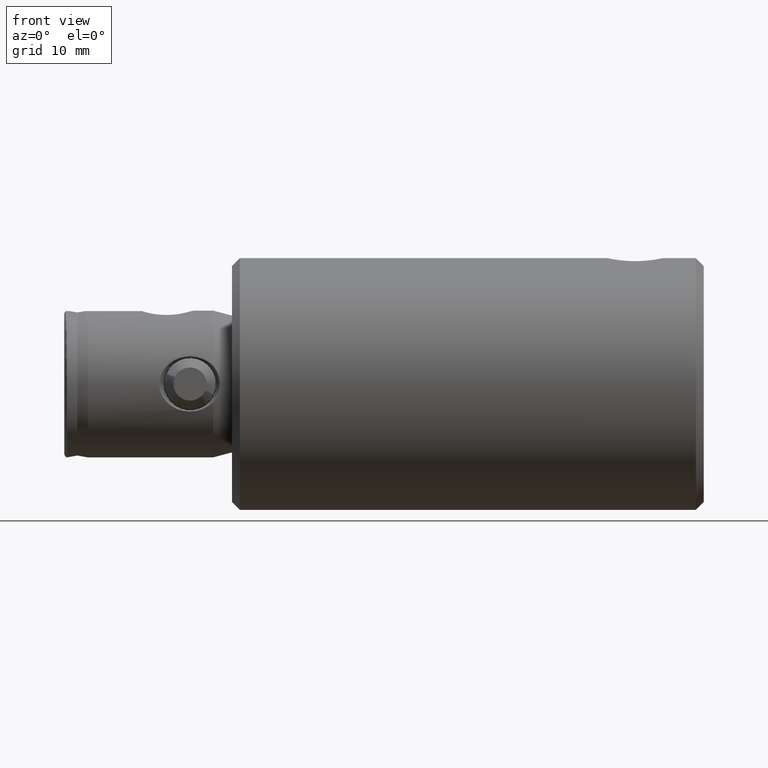
[diagram: clean part render]
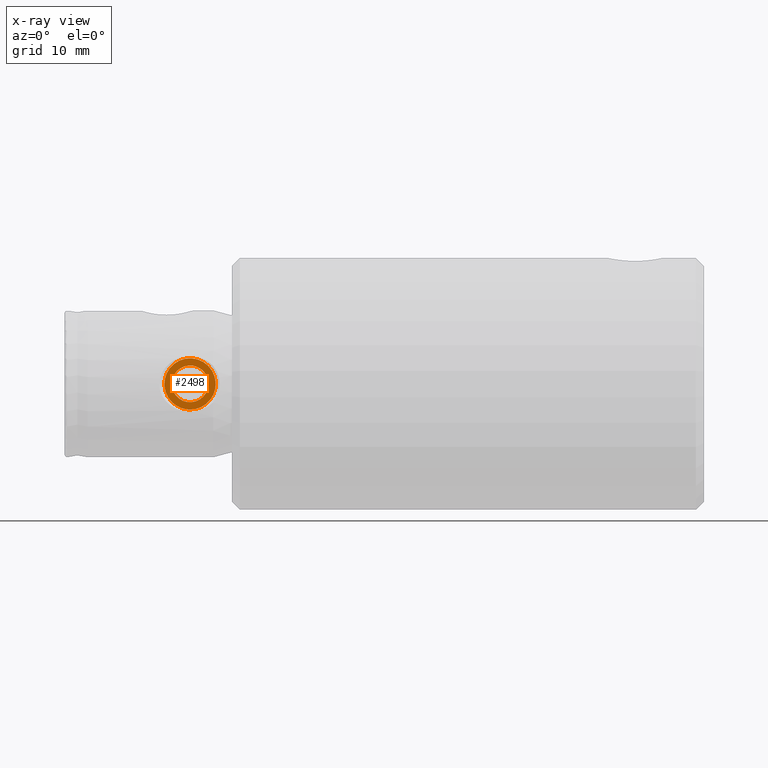
[diagram: x-ray — body ghosted, one internal face saturated and labeled with its STEP entity id]
A machine part, front view, then the same camera in x-ray: the body is ghosted and one INTERNAL B-rep face — a face not visible from any outside direction — is saturated and labeled: STEP entity #2498.
In plain terms, the highlighted planar face has unit normal (0, 1, -0).
Its self-contained STEP definition (entity closure, byte-faithful):
#45 = DIRECTION ( 'NONE',  ( 0.0000000000000000000, -1.000000000000000000, 0.0000000000000000000 ) ) ;
#252 = CARTESIAN_POINT ( 'NONE',  ( 7.900000000000000400, 3.851859888774471700E-031, 2.449999999999999300 ) ) ;
#303 = AXIS2_PLACEMENT_3D ( 'NONE', #3957, #2000, #45 ) ;
#305 = DIRECTION ( 'NONE',  ( 0.0000000000000000000, -1.000000000000000000, 0.0000000000000000000 ) ) ;
#405 = ORIENTED_EDGE ( 'NONE', *, *, #3731, .F. ) ;
#420 = CIRCLE ( 'NONE', #4159, 2.449999999999999300 ) ;
#424 = CARTESIAN_POINT ( 'NONE',  ( 7.900000000000000400, -1.749999999999998700, 0.0000000000000000000 ) ) ;
#530 = VERTEX_POINT ( 'NONE', #2575 ) ;
#537 = CARTESIAN_POINT ( 'NONE',  ( 7.900000000000000400, 1.371678961311315000E-015, 0.0000000000000000000 ) ) ;
#600 = ORIENTED_EDGE ( 'NONE', *, *, #2611, .T. ) ;
#622 = DIRECTION ( 'NONE',  ( -1.000000000000000000, -1.736302482672550400E-016, -0.0000000000000000000 ) ) ;
#791 = ORIENTED_EDGE ( 'NONE', *, *, #1961, .T. ) ;
#831 = DIRECTION ( 'NONE',  ( -1.736302482672550400E-016, 1.000000000000000000, 0.0000000000000000000 ) ) ;
#853 = FACE_OUTER_BOUND ( 'NONE', #3388, .T. ) ;
#884 = DIRECTION ( 'NONE',  ( 0.0000000000000000000, -1.000000000000000000, 0.0000000000000000000 ) ) ;
#1001 = ORIENTED_EDGE ( 'NONE', *, *, #1126, .F. ) ;
#1126 = EDGE_CURVE ( 'NONE', #2714, #530, #3830, .T. ) ;
#1333 = AXIS2_PLACEMENT_3D ( 'NONE', #4226, #2268, #305 ) ;
#1401 = AXIS2_PLACEMENT_3D ( 'NONE', #537, #2842, #884 ) ;
#1471 = PLANE ( 'NONE',  #2263 ) ;
#1534 = VERTEX_POINT ( 'NONE', #2120 ) ;
#1961 = EDGE_CURVE ( 'NONE', #1534, #2857, #3506, .T. ) ;
#2000 = DIRECTION ( 'NONE',  ( -1.000000000000000000, -1.736302482672550400E-016, -0.0000000000000000000 ) ) ;
#2120 = CARTESIAN_POINT ( 'NONE',  ( 7.900000000000000400, 1.750000000000001300, 2.143131898507868300E-016 ) ) ;
#2263 = AXIS2_PLACEMENT_3D ( 'NONE', #2459, #2796, #831 ) ;
#2268 = DIRECTION ( 'NONE',  ( -1.000000000000000000, -1.736302482672550400E-016, -0.0000000000000000000 ) ) ;
#2283 = CIRCLE ( 'NONE', #1401, 1.750000000000000000 ) ;
#2459 = CARTESIAN_POINT ( 'NONE',  ( 7.900000000000000400, 2.450000000000000600, 0.0000000000000000000 ) ) ;
#2498 = ADVANCED_FACE ( 'NONE', ( #4223, #853 ), #1471, .T. ) ;
#2575 = CARTESIAN_POINT ( 'NONE',  ( 7.900000000000000400, 3.000384657911017300E-016, -2.449999999999999300 ) ) ;
#2600 = CARTESIAN_POINT ( 'NONE',  ( 7.900000000000000400, 1.371678961311315000E-015, 0.0000000000000000000 ) ) ;
#2611 = EDGE_CURVE ( 'NONE', #2857, #1534, #2283, .T. ) ;
#2714 = VERTEX_POINT ( 'NONE', #252 ) ;
#2796 = DIRECTION ( 'NONE',  ( 1.000000000000000000, 1.736302482672550400E-016, 0.0000000000000000000 ) ) ;
#2842 = DIRECTION ( 'NONE',  ( -1.000000000000000000, -1.736302482672550400E-016, -0.0000000000000000000 ) ) ;
#2857 = VERTEX_POINT ( 'NONE', #424 ) ;
#2917 = DIRECTION ( 'NONE',  ( 0.0000000000000000000, -1.000000000000000000, 0.0000000000000000000 ) ) ;
#3388 = EDGE_LOOP ( 'NONE', ( #1001, #405 ) ) ;
#3506 = CIRCLE ( 'NONE', #1333, 1.750000000000000000 ) ;
#3731 = EDGE_CURVE ( 'NONE', #530, #2714, #420, .T. ) ;
#3830 = CIRCLE ( 'NONE', #303, 2.449999999999999300 ) ;
#3886 = EDGE_LOOP ( 'NONE', ( #600, #791 ) ) ;
#3957 = CARTESIAN_POINT ( 'NONE',  ( 7.900000000000000400, 1.371678961311315000E-015, 0.0000000000000000000 ) ) ;
#4159 = AXIS2_PLACEMENT_3D ( 'NONE', #2600, #622, #2917 ) ;
#4223 = FACE_BOUND ( 'NONE', #3886, .T. ) ;
#4226 = CARTESIAN_POINT ( 'NONE',  ( 7.900000000000000400, 1.371678961311315000E-015, 0.0000000000000000000 ) ) ;